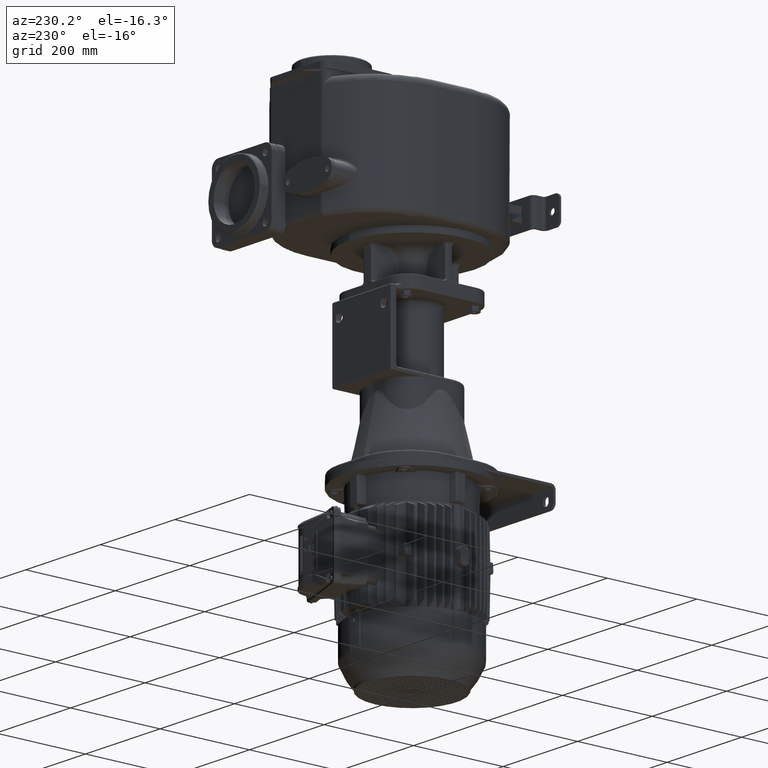
[diagram: clean part render]
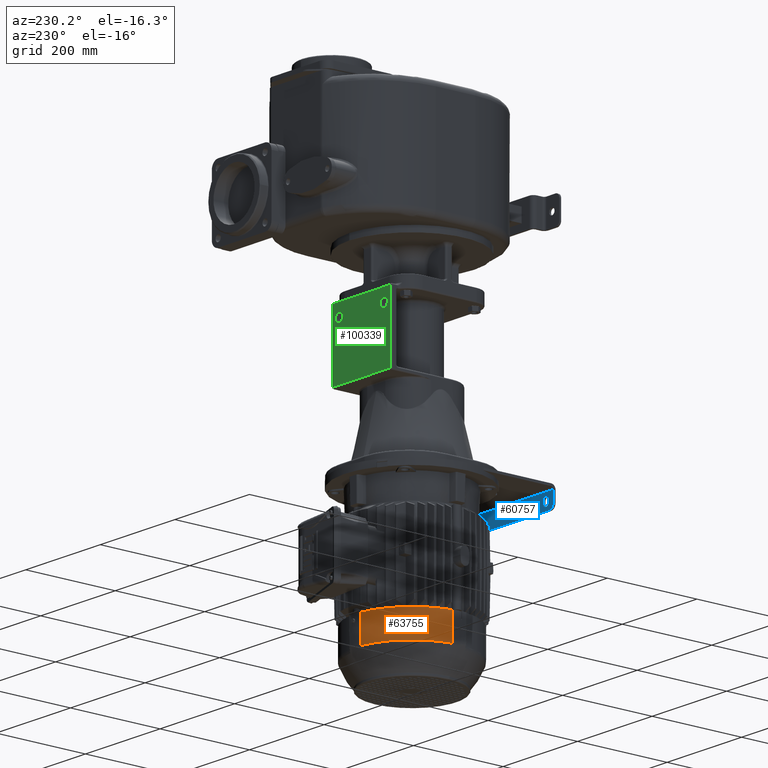
[diagram: same view with three faces highlighted in distinct colors, each labeled with its STEP entity id]
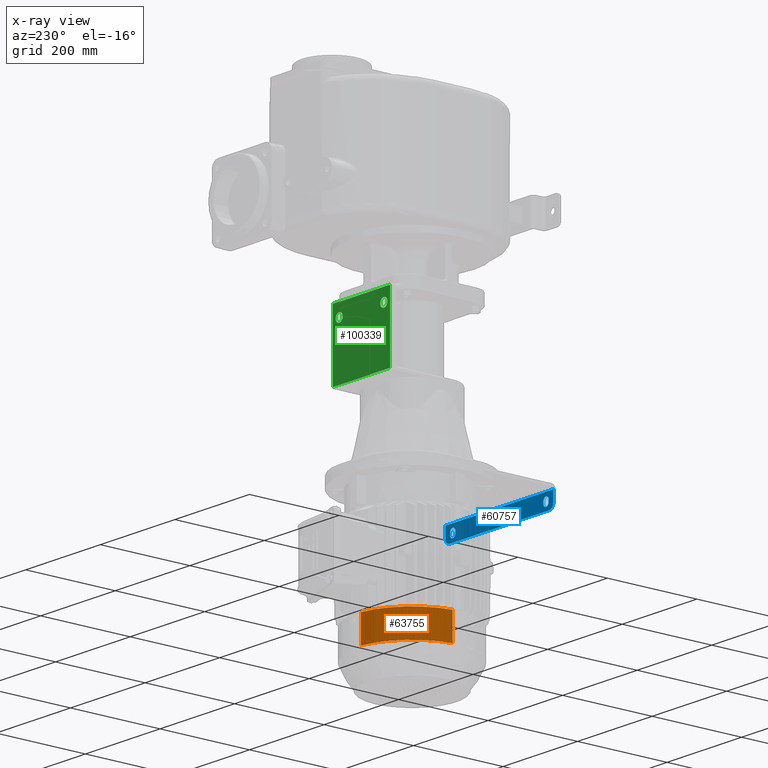
[diagram: x-ray of the same camera — body ghosted, the three highlighted faces saturated]
A machine part, auxiliary view with three faces highlighted in distinct colors.
The next image is the same camera in x-ray (body ghosted, the three faces saturated) — at least one of them is partly hidden behind the body in this view.
Their STEP definitions:

[orange] entity #63755 — the highlighted cylindrical surface (partial cylindrical patch) has radius 127.75 mm, axis along (0, 0, -1).
#10851=CARTESIAN_POINT('',(-1.742786433008E-14,1.7E2,-7.492001E2));
#10852=DIRECTION('',(0.E0,0.E0,1.E0));
#10853=DIRECTION('',(-1.165048543689E-1,9.931901222367E-1,0.E0));
#10854=AXIS2_PLACEMENT_3D('',#10851,#10852,#10853);
#12104=DIRECTION('',(0.E0,0.E0,1.E0));
#12105=VECTOR('',#12104,5.973225400103E1);
#12106=CARTESIAN_POINT('',(-1.488349514563E1,2.968800381157E2,
-8.089323540010E2));
#12107=LINE('',#12106,#12105);
#12154=CARTESIAN_POINT('',(-2.474271410786E-14,1.7E2,-8.089323540010E2));
#12155=DIRECTION('',(0.E0,0.E0,-1.E0));
#12156=DIRECTION('',(-9.931901222367E-1,1.165048543689E-1,0.E0));
#12157=AXIS2_PLACEMENT_3D('',#12154,#12155,#12156);
#12182=DIRECTION('',(0.E0,0.E0,-1.E0));
#12183=VECTOR('',#12182,5.973225400103E1);
#12184=CARTESIAN_POINT('',(-1.268800381157E2,1.848834951456E2,-7.492001E2));
#12185=LINE('',#12184,#12183);
#47805=CARTESIAN_POINT('',(-1.268800381157E2,1.848834951456E2,
-8.089323540010E2));
#47806=CARTESIAN_POINT('',(-1.488349514563E1,2.968800381157E2,
-8.089323540010E2));
#47807=VERTEX_POINT('',#47805);
#47808=VERTEX_POINT('',#47806);
#47857=CARTESIAN_POINT('',(-1.488349514563E1,2.968800381157E2,-7.492001E2));
#47858=CARTESIAN_POINT('',(-1.268800381157E2,1.848834951456E2,-7.492001E2));
#47859=VERTEX_POINT('',#47857);
#47860=VERTEX_POINT('',#47858);
#63743=CARTESIAN_POINT('',(-3.334150669701E-14,1.7E2,-8.791491429497E2));
#63744=DIRECTION('',(0.E0,0.E0,-1.E0));
#63745=DIRECTION('',(-1.E0,0.E0,0.E0));
#63746=AXIS2_PLACEMENT_3D('',#63743,#63744,#63745);
#63747=CYLINDRICAL_SURFACE('',#63746,1.2775E2);
#63748=ORIENTED_EDGE('',*,*,#63736,.T.);
#63749=ORIENTED_EDGE('',*,*,#63606,.T.);
#63750=ORIENTED_EDGE('',*,*,#62425,.T.);
#63752=ORIENTED_EDGE('',*,*,#63751,.T.);
#63753=EDGE_LOOP('',(#63748,#63749,#63750,#63752));
#63754=FACE_OUTER_BOUND('',#63753,.F.);
#63755=ADVANCED_FACE('',(#63754),#63747,.T.);
#10855=CIRCLE('',#10854,1.2775E2);
#12158=CIRCLE('',#12157,1.2775E2);
#62425=EDGE_CURVE('',#47859,#47860,#10855,.T.);
#63606=EDGE_CURVE('',#47808,#47859,#12107,.T.);
#63736=EDGE_CURVE('',#47807,#47808,#12158,.T.);
#63751=EDGE_CURVE('',#47860,#47807,#12185,.T.);

[blue] entity #60757 — the highlighted planar face has unit normal (0, 1, 0).
#8623=DIRECTION('',(1.E0,0.E0,0.E0));
#8624=VECTOR('',#8623,2.9E2);
#8625=CARTESIAN_POINT('',(-1.45E2,-2.5E1,-4.985E2));
#8626=LINE('',#8625,#8624);
#8641=CARTESIAN_POINT('',(1.33E2,-2.5E1,-5.215E2));
#8642=DIRECTION('',(0.E0,1.E0,0.E0));
#8643=DIRECTION('',(1.E0,0.E0,0.E0));
#8644=AXIS2_PLACEMENT_3D('',#8641,#8642,#8643);
#8646=DIRECTION('',(0.E0,0.E0,-1.E0));
#8647=VECTOR('',#8646,2.3E1);
#8648=CARTESIAN_POINT('',(1.45E2,-2.5E1,-4.985E2));
#8649=LINE('',#8648,#8647);
#8650=DIRECTION('',(0.E0,0.E0,1.E0));
#8651=VECTOR('',#8650,2.3E1);
#8652=CARTESIAN_POINT('',(-1.45E2,-2.5E1,-5.215E2));
#8653=LINE('',#8652,#8651);
#8654=CARTESIAN_POINT('',(-1.33E2,-2.5E1,-5.215E2));
#8655=DIRECTION('',(0.E0,1.E0,0.E0));
#8656=DIRECTION('',(-1.184237892934E-14,0.E0,-1.E0));
#8657=AXIS2_PLACEMENT_3D('',#8654,#8655,#8656);
#8659=DIRECTION('',(-1.E0,0.E0,0.E0));
#8660=VECTOR('',#8659,2.66E2);
#8661=CARTESIAN_POINT('',(1.33E2,-2.5E1,-5.335E2));
#8662=LINE('',#8661,#8660);
#8663=DIRECTION('',(0.E0,0.E0,-1.E0));
#8664=VECTOR('',#8663,5.E0);
#8665=CARTESIAN_POINT('',(-1.32E2,-2.5E1,-5.135E2));
#8666=LINE('',#8665,#8664);
#8667=CARTESIAN_POINT('',(-1.25E2,-2.5E1,-5.135E2));
#8668=DIRECTION('',(0.E0,1.E0,0.E0));
#8669=DIRECTION('',(-1.E0,0.E0,0.E0));
#8670=AXIS2_PLACEMENT_3D('',#8667,#8668,#8669);
#8672=DIRECTION('',(0.E0,0.E0,1.E0));
#8673=VECTOR('',#8672,5.E0);
#8674=CARTESIAN_POINT('',(-1.18E2,-2.5E1,-5.185E2));
#8675=LINE('',#8674,#8673);
#8676=CARTESIAN_POINT('',(-1.25E2,-2.5E1,-5.185E2));
#8677=DIRECTION('',(0.E0,1.E0,0.E0));
#8678=DIRECTION('',(1.E0,0.E0,0.E0));
#8679=AXIS2_PLACEMENT_3D('',#8676,#8677,#8678);
#8681=CARTESIAN_POINT('',(1.25E2,-2.5E1,-5.135E2));
#8682=DIRECTION('',(0.E0,1.E0,0.E0));
#8683=DIRECTION('',(-1.E0,0.E0,0.E0));
#8684=AXIS2_PLACEMENT_3D('',#8681,#8682,#8683);
#8686=DIRECTION('',(0.E0,0.E0,1.E0));
#8687=VECTOR('',#8686,5.E0);
#8688=CARTESIAN_POINT('',(1.32E2,-2.5E1,-5.185E2));
#8689=LINE('',#8688,#8687);
#8690=CARTESIAN_POINT('',(1.25E2,-2.5E1,-5.185E2));
#8691=DIRECTION('',(0.E0,1.E0,0.E0));
#8692=DIRECTION('',(1.E0,0.E0,0.E0));
#8693=AXIS2_PLACEMENT_3D('',#8690,#8691,#8692);
#8695=DIRECTION('',(0.E0,0.E0,-1.E0));
#8696=VECTOR('',#8695,5.E0);
#8697=CARTESIAN_POINT('',(1.18E2,-2.5E1,-5.135E2));
#8698=LINE('',#8697,#8696);
#45596=CARTESIAN_POINT('',(1.45E2,-2.5E1,-5.215E2));
#45597=VERTEX_POINT('',#45596);
#45598=CARTESIAN_POINT('',(1.33E2,-2.5E1,-5.335E2));
#45599=VERTEX_POINT('',#45598);
#45604=CARTESIAN_POINT('',(-1.33E2,-2.5E1,-5.335E2));
#45605=VERTEX_POINT('',#45604);
#45606=CARTESIAN_POINT('',(-1.45E2,-2.5E1,-5.215E2));
#45607=VERTEX_POINT('',#45606);
#45612=CARTESIAN_POINT('',(1.45E2,-2.5E1,-4.985E2));
#45613=VERTEX_POINT('',#45612);
#45614=CARTESIAN_POINT('',(-1.45E2,-2.5E1,-4.985E2));
#45615=VERTEX_POINT('',#45614);
#45616=CARTESIAN_POINT('',(-1.32E2,-2.5E1,-5.135E2));
#45617=CARTESIAN_POINT('',(-1.32E2,-2.5E1,-5.185E2));
#45618=VERTEX_POINT('',#45616);
#45619=VERTEX_POINT('',#45617);
#45620=CARTESIAN_POINT('',(-1.18E2,-2.5E1,-5.185E2));
#45621=VERTEX_POINT('',#45620);
#45622=CARTESIAN_POINT('',(-1.18E2,-2.5E1,-5.135E2));
#45623=VERTEX_POINT('',#45622);
#45624=CARTESIAN_POINT('',(1.18E2,-2.5E1,-5.135E2));
#45625=CARTESIAN_POINT('',(1.32E2,-2.5E1,-5.135E2));
#45626=VERTEX_POINT('',#45624);
#45627=VERTEX_POINT('',#45625);
#45628=CARTESIAN_POINT('',(1.18E2,-2.5E1,-5.185E2));
#45629=VERTEX_POINT('',#45628);
#45630=CARTESIAN_POINT('',(1.32E2,-2.5E1,-5.185E2));
#45631=VERTEX_POINT('',#45630);
#60721=CARTESIAN_POINT('',(1.45E2,-2.5E1,-4.885E2));
#60722=DIRECTION('',(0.E0,1.E0,0.E0));
#60723=DIRECTION('',(1.E0,0.E0,0.E0));
#60724=AXIS2_PLACEMENT_3D('',#60721,#60722,#60723);
#60725=PLANE('',#60724);
#60726=ORIENTED_EDGE('',*,*,#60648,.F.);
#60727=ORIENTED_EDGE('',*,*,#60664,.F.);
#60728=ORIENTED_EDGE('',*,*,#60713,.F.);
#60730=ORIENTED_EDGE('',*,*,#60729,.F.);
#60732=ORIENTED_EDGE('',*,*,#60731,.F.);
#60734=ORIENTED_EDGE('',*,*,#60733,.F.);
#60735=EDGE_LOOP('',(#60726,#60727,#60728,#60730,#60732,#60734));
#60736=FACE_OUTER_BOUND('',#60735,.F.);
#60738=ORIENTED_EDGE('',*,*,#60737,.F.);
#60740=ORIENTED_EDGE('',*,*,#60739,.T.);
#60742=ORIENTED_EDGE('',*,*,#60741,.F.);
#60744=ORIENTED_EDGE('',*,*,#60743,.T.);
#60745=EDGE_LOOP('',(#60738,#60740,#60742,#60744));
#60746=FACE_BOUND('',#60745,.F.);
#60748=ORIENTED_EDGE('',*,*,#60747,.T.);
#60750=ORIENTED_EDGE('',*,*,#60749,.F.);
#60752=ORIENTED_EDGE('',*,*,#60751,.T.);
#60754=ORIENTED_EDGE('',*,*,#60753,.F.);
#60755=EDGE_LOOP('',(#60748,#60750,#60752,#60754));
#60756=FACE_BOUND('',#60755,.F.);
#60757=ADVANCED_FACE('',(#60736,#60746,#60756),#60725,.T.);
#8645=CIRCLE('',#8644,1.2E1);
#8658=CIRCLE('',#8657,1.2E1);
#8671=CIRCLE('',#8670,7.E0);
#8680=CIRCLE('',#8679,7.E0);
#8685=CIRCLE('',#8684,7.E0);
#8694=CIRCLE('',#8693,7.E0);
#60648=EDGE_CURVE('',#45597,#45599,#8645,.T.);
#60664=EDGE_CURVE('',#45613,#45597,#8649,.T.);
#60713=EDGE_CURVE('',#45615,#45613,#8626,.T.);
#60729=EDGE_CURVE('',#45607,#45615,#8653,.T.);
#60731=EDGE_CURVE('',#45605,#45607,#8658,.T.);
#60733=EDGE_CURVE('',#45599,#45605,#8662,.T.);
#60737=EDGE_CURVE('',#45618,#45619,#8666,.T.);
#60739=EDGE_CURVE('',#45618,#45623,#8671,.T.);
#60741=EDGE_CURVE('',#45621,#45623,#8675,.T.);
#60743=EDGE_CURVE('',#45621,#45619,#8680,.T.);
#60747=EDGE_CURVE('',#45626,#45627,#8685,.T.);
#60749=EDGE_CURVE('',#45631,#45627,#8689,.T.);
#60751=EDGE_CURVE('',#45631,#45629,#8694,.T.);
#60753=EDGE_CURVE('',#45626,#45629,#8698,.T.);

[green] entity #100339 — the highlighted planar face has unit normal (0, 1, 0).
#37982=DIRECTION('',(-1.E0,0.E0,0.E0));
#37983=VECTOR('',#37982,1.54E2);
#37984=CARTESIAN_POINT('',(7.7E1,2.83E2,-3.235E2));
#37985=LINE('',#37984,#37983);
#37986=CARTESIAN_POINT('',(7.7E1,2.83E2,-1.745E2));
#37987=CARTESIAN_POINT('',(7.7E1,2.83E2,-2.241666666667E2));
#37988=CARTESIAN_POINT('',(7.7E1,2.83E2,-2.738333333333E2));
#37989=CARTESIAN_POINT('',(7.7E1,2.83E2,-3.235E2));
#37991=DIRECTION('',(1.E0,0.E0,0.E0));
#37992=VECTOR('',#37991,1.54E2);
#37993=CARTESIAN_POINT('',(-7.7E1,2.83E2,-1.745E2));
#37994=LINE('',#37993,#37992);
#37995=CARTESIAN_POINT('',(-7.7E1,2.83E2,-3.235E2));
#37996=CARTESIAN_POINT('',(-7.7E1,2.83E2,-2.738333333333E2));
#37997=CARTESIAN_POINT('',(-7.7E1,2.83E2,-2.241666666667E2));
#37998=CARTESIAN_POINT('',(-7.7E1,2.83E2,-1.745E2));
#38000=CARTESIAN_POINT('',(6.E1,2.83E2,-2.025E2));
#38001=DIRECTION('',(0.E0,1.E0,0.E0));
#38002=DIRECTION('',(0.E0,0.E0,1.E0));
#38003=AXIS2_PLACEMENT_3D('',#38000,#38001,#38002);
#38005=CARTESIAN_POINT('',(6.E1,2.83E2,-2.025E2));
#38006=DIRECTION('',(0.E0,1.E0,0.E0));
#38007=DIRECTION('',(0.E0,0.E0,-1.E0));
#38008=AXIS2_PLACEMENT_3D('',#38005,#38006,#38007);
#38010=CARTESIAN_POINT('',(-6.E1,2.83E2,-2.025E2));
#38011=DIRECTION('',(0.E0,1.E0,0.E0));
#38012=DIRECTION('',(0.E0,0.E0,1.E0));
#38013=AXIS2_PLACEMENT_3D('',#38010,#38011,#38012);
#38015=CARTESIAN_POINT('',(-6.E1,2.83E2,-2.025E2));
#38016=DIRECTION('',(0.E0,1.E0,0.E0));
#38017=DIRECTION('',(0.E0,0.E0,-1.E0));
#38018=AXIS2_PLACEMENT_3D('',#38015,#38016,#38017);
#44960=CARTESIAN_POINT('',(7.7E1,2.83E2,-3.235E2));
#44961=CARTESIAN_POINT('',(-7.7E1,2.83E2,-3.235E2));
#44962=VERTEX_POINT('',#44960);
#44963=VERTEX_POINT('',#44961);
#44968=CARTESIAN_POINT('',(-7.7E1,2.83E2,-1.745E2));
#44969=CARTESIAN_POINT('',(7.7E1,2.83E2,-1.745E2));
#44970=VERTEX_POINT('',#44968);
#44971=VERTEX_POINT('',#44969);
#45108=CARTESIAN_POINT('',(6.E1,2.83E2,-1.93E2));
#45109=CARTESIAN_POINT('',(6.E1,2.83E2,-2.12E2));
#45110=VERTEX_POINT('',#45108);
#45111=VERTEX_POINT('',#45109);
#45112=CARTESIAN_POINT('',(-6.E1,2.83E2,-1.93E2));
#45113=CARTESIAN_POINT('',(-6.E1,2.83E2,-2.12E2));
#45114=VERTEX_POINT('',#45112);
#45115=VERTEX_POINT('',#45113);
#100314=CARTESIAN_POINT('',(0.E0,2.83E2,-2.5E2));
#100315=DIRECTION('',(0.E0,1.E0,0.E0));
#100316=DIRECTION('',(0.E0,0.E0,-1.E0));
#100317=AXIS2_PLACEMENT_3D('',#100314,#100315,#100316);
#100318=PLANE('',#100317);
#100320=ORIENTED_EDGE('',*,*,#100319,.F.);
#100322=ORIENTED_EDGE('',*,*,#100321,.F.);
#100323=ORIENTED_EDGE('',*,*,#100220,.F.);
#100324=ORIENTED_EDGE('',*,*,#100305,.F.);
#100325=EDGE_LOOP('',(#100320,#100322,#100323,#100324));
#100326=FACE_OUTER_BOUND('',#100325,.F.);
#100328=ORIENTED_EDGE('',*,*,#100327,.T.);
#100330=ORIENTED_EDGE('',*,*,#100329,.T.);
#100331=EDGE_LOOP('',(#100328,#100330));
#100332=FACE_BOUND('',#100331,.F.);
#100334=ORIENTED_EDGE('',*,*,#100333,.T.);
#100336=ORIENTED_EDGE('',*,*,#100335,.T.);
#100337=EDGE_LOOP('',(#100334,#100336));
#100338=FACE_BOUND('',#100337,.F.);
#100339=ADVANCED_FACE('',(#100326,#100332,#100338),#100318,.T.);
#37990=B_SPLINE_CURVE_WITH_KNOTS('',3,(#37986,#37987,#37988,#37989),
.UNSPECIFIED.,.F.,.F.,(4,4),(0.E0,1.E0),.UNSPECIFIED.);
#37999=B_SPLINE_CURVE_WITH_KNOTS('',3,(#37995,#37996,#37997,#37998),
.UNSPECIFIED.,.F.,.F.,(4,4),(0.E0,1.E0),.UNSPECIFIED.);
#38004=CIRCLE('',#38003,9.5E0);
#38009=CIRCLE('',#38008,9.5E0);
#38014=CIRCLE('',#38013,9.5E0);
#38019=CIRCLE('',#38018,9.5E0);
#100220=EDGE_CURVE('',#44970,#44971,#37994,.T.);
#100305=EDGE_CURVE('',#44963,#44970,#37999,.T.);
#100319=EDGE_CURVE('',#44962,#44963,#37985,.T.);
#100321=EDGE_CURVE('',#44971,#44962,#37990,.T.);
#100327=EDGE_CURVE('',#45110,#45111,#38004,.T.);
#100329=EDGE_CURVE('',#45111,#45110,#38009,.T.);
#100333=EDGE_CURVE('',#45114,#45115,#38014,.T.);
#100335=EDGE_CURVE('',#45115,#45114,#38019,.T.);